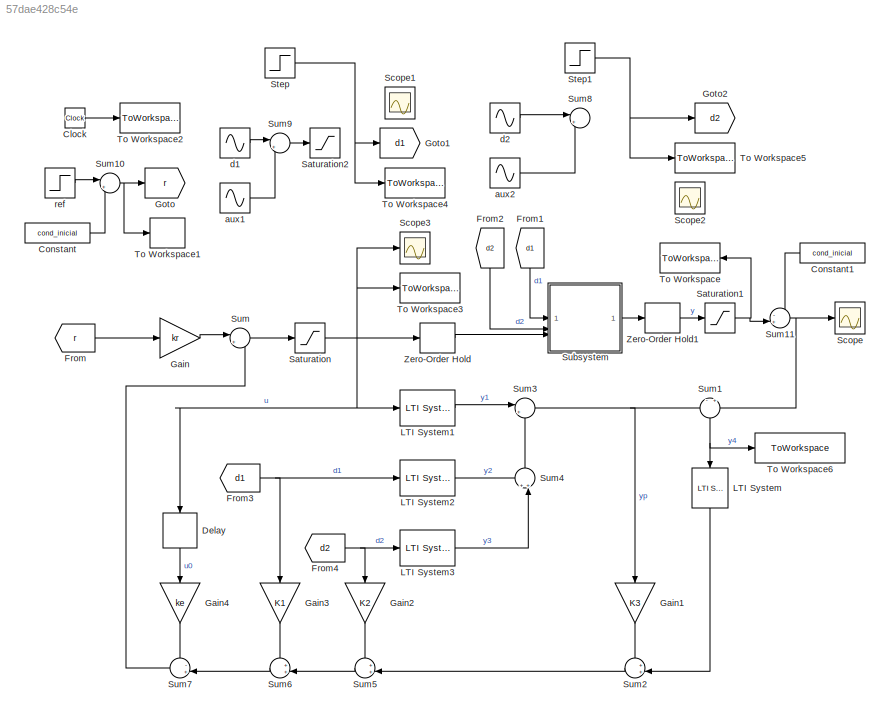
MODEL slx_57dae428c54e
KIND model
CONFIG AbsTol = auto
CONFIG EnableMultiTasking = off
CONFIG FixedStep = auto
CONFIG MaxStep = auto
CONFIG MinStep = auto
CONFIG RelTol = 1e-3
CONFIG SampleTimeConstraint = Unconstrained
CONFIG SolverName = VariableStepAuto
CONFIG StartTime = 0.0
CONFIG StopTime = Tsim
BLOCK [Clock] Clock
BLOCK [Constant] Constant
  Commented = on
  Value = cond_inicial
BLOCK [Constant] Constant1
  Commented = on
  NameLocation = top
  Value = cond_inicial
BLOCK [Delay] Delay
  DelayLength = 1
  InputPortMap = u0
  NameLocation = left
  SampleTime = Ts
BLOCK [From] From
  GotoTag = r
BLOCK [From] From1
  GotoTag = d1
  NameLocation = left
BLOCK [From] From2
  GotoTag = d2
  NameLocation = left
BLOCK [From] From3
  GotoTag = d1
BLOCK [From] From4
  GotoTag = d2
BLOCK [Gain] Gain
  Gain = kr
  Multiplication = Matrix(K*u)
BLOCK [Gain] Gain1
  Gain = K3
  Multiplication = Matrix(K*u)
  NameLocation = left
BLOCK [Gain] Gain2
  Gain = K2
  Multiplication = Matrix(K*u)
  NameLocation = left
BLOCK [Gain] Gain3
  Gain = K1
  Multiplication = Matrix(K*u)
  NameLocation = left
BLOCK [Gain] Gain4
  Gain = ke
  Multiplication = Matrix(K*u)
  NameLocation = left
BLOCK [Goto] Goto
  GotoTag = r
BLOCK [Goto] Goto1
  GotoTag = d1
BLOCK [Goto] Goto2
  GotoTag = d2
BLOCK [Reference] LTI System  REF=cstblocks/LTI System
  NameLocation = left
  SourceBlock = cstblocks/LTI System
  SourceType = LTI Block
BLOCK [Reference] LTI System1  REF=cstblocks/LTI System
  SourceBlock = cstblocks/LTI System
  SourceType = LTI Block
BLOCK [Reference] LTI System2  REF=cstblocks/LTI System
  SourceBlock = cstblocks/LTI System
  SourceType = LTI Block
BLOCK [Reference] LTI System3  REF=cstblocks/LTI System
  SourceBlock = cstblocks/LTI System
  SourceType = LTI Block
BLOCK [Saturate] Saturation
  LowerLimit = u_min
  UpperLimit = u_max
BLOCK [Saturate] Saturation1
  Commented = through
  LowerLimit = y_min
  UpperLimit = y_max
BLOCK [Saturate] Saturation2
  LowerLimit = 5
  UpperLimit = 80
BLOCK [Scope] Scope
  Floating = off
  NumInputPorts = 1
  ScopeSpecificationString = Simulink.scopes.TimeScopeBlockCfg('CurrentConfiguration', extmgr.ConfigurationSet(extmgr.Configuration('Core','General UI',true),extmgr.Configuration('Core','Source UI',true),extmgr.Configuration('Sources','WiredSimulink',true),extmgr.Configuration('Visuals','Time Domain',true,'SerializedDisplays',{struct('MinYLimReal','-5.35691','MaxYLimReal','48.21218','YLabelReal','','MinYLimMag','0.00000','Max...<+1384ch>
BLOCK [Scope] Scope1
  Floating = off
  NumInputPorts = 1
  ScopeSpecificationString = Simulink.scopes.TimeScopeBlockCfg('CurrentConfiguration', extmgr.ConfigurationSet(extmgr.Configuration('Core','General UI',true),extmgr.Configuration('Core','Source UI',true),extmgr.Configuration('Sources','WiredSimulink',true,'DataLoggingVariableName','ScopeData1'),extmgr.Configuration('Visuals','Time Domain',true,'SerializedDisplays',{struct('MinYLimReal','-4.33907','MaxYLimReal','89.05162','YLa...<+1448ch>
BLOCK [Scope] Scope2
  Floating = off
  NumInputPorts = 1
  ScopeSpecificationString = Simulink.scopes.TimeScopeBlockCfg('CurrentConfiguration', extmgr.ConfigurationSet(extmgr.Configuration('Core','General UI',true),extmgr.Configuration('Core','Source UI',true),extmgr.Configuration('Sources','WiredSimulink',true,'DataLoggingVariableName','ScopeData2'),extmgr.Configuration('Visuals','Time Domain',true,'SerializedDisplays',{struct('MinYLimReal','24.94313','MaxYLimReal','46.0864','YLab...<+1439ch>
BLOCK [Scope] Scope3
  Floating = off
  NumInputPorts = 1
  ScopeSpecificationString = Simulink.scopes.TimeScopeBlockCfg('CurrentConfiguration', extmgr.ConfigurationSet(extmgr.Configuration('Core','General UI',true),extmgr.Configuration('Core','Source UI',true),extmgr.Configuration('Sources','WiredSimulink',true,'DataLoggingVariableName','ScopeData1'),extmgr.Configuration('Visuals','Time Domain',true,'SerializedDisplays',{struct('MinYLimReal','-19.37421','MaxYLimReal','174.36786','Y...<+1424ch>
BLOCK [Step] Step
  SampleTime = Ts
  Time = 30000
BLOCK [Step] Step1
  After = 0.5
  SampleTime = Ts
  Time = 60000
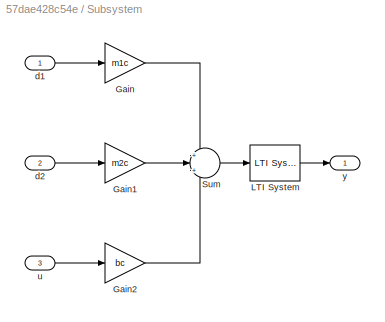
BLOCK [SubSystem] Subsystem
BLOCK [Gain] Subsystem/Gain
  Gain = m1c
BLOCK [Gain] Subsystem/Gain1
  Gain = m2c
BLOCK [Gain] Subsystem/Gain2
  Gain = bc
BLOCK [Reference] Subsystem/LTI System  REF=cstblocks/LTI System
  SourceBlock = cstblocks/LTI System
  SourceType = LTI Block
BLOCK [Sum] Subsystem/Sum
  Inputs = +|+|+
BLOCK [Inport] Subsystem/d1
BLOCK [Inport] Subsystem/d2
  Port = 2
BLOCK [Inport] Subsystem/u
  Port = 3
BLOCK [Outport] Subsystem/y
BLOCK [Sum] Sum
  Inputs = |+-
BLOCK [Sum] Sum1
  Inputs = -|+
  NameLocation = left
BLOCK [Sum] Sum10
  Inputs = |++
BLOCK [Sum] Sum11
  Inputs = -+|
BLOCK [Sum] Sum2
  Inputs = ++|
BLOCK [Sum] Sum3
  Inputs = |++
BLOCK [Sum] Sum4
  Inputs = ++|
  NameLocation = right
BLOCK [Sum] Sum5
  Inputs = ++|
BLOCK [Sum] Sum6
  Inputs = ++|
BLOCK [Sum] Sum7
  Inputs = -+|
BLOCK [Sum] Sum8
  Inputs = |++
BLOCK [Sum] Sum9
  Inputs = |++
BLOCK [ToWorkspace] To Workspace
  FixptAsFi = on
  MaxDataPoints = inf
  NameLocation = top
  SampleTime = Ts
  VariableName = y
BLOCK [ToWorkspace] To Workspace1
  FixptAsFi = on
  MaxDataPoints = inf
  SampleTime = Ts
  VariableName = r
BLOCK [ToWorkspace] To Workspace2
  FixptAsFi = on
  MaxDataPoints = inf
  SampleTime = Ts
  VariableName = t
BLOCK [ToWorkspace] To Workspace3
  FixptAsFi = on
  MaxDataPoints = inf
  SampleTime = Ts
  VariableName = u
BLOCK [ToWorkspace] To Workspace4
  FixptAsFi = on
  MaxDataPoints = inf
  SampleTime = Ts
  VariableName = d1
BLOCK [ToWorkspace] To Workspace5
  FixptAsFi = on
  MaxDataPoints = inf
  SampleTime = Ts
  VariableName = d2
BLOCK [ToWorkspace] To Workspace6
  FixptAsFi = on
  MaxDataPoints = inf
  SampleTime = Ts
  VariableName = y4
BLOCK [ZeroOrderHold] Zero-Order Hold
  SampleTime = Ts
BLOCK [ZeroOrderHold] Zero-Order Hold1
  SampleTime = Ts
BLOCK [Sin] aux1
  Amplitude = 0.5
  Frequency = 8*2*pi/Tsim
  Phase = -pi/4
  SampleTime = Ts
BLOCK [Sin] aux2
  Amplitude = 0.5
  Frequency = 8*2*pi/Tsim
  Phase = -pi/1.25
  SampleTime = Ts
BLOCK [Sin] d1
  Amplitude = 80
  Frequency = 2*pi/Tsim
  Phase = -pi/4
  SampleTime = Ts
BLOCK [Sin] d2
  Amplitude = 7.5
  Bias = 35.5
  Frequency = 2.25*pi/Tsim
  Phase = -pi/1.25
  SampleTime = Ts
BLOCK [Step] ref
  After = ref
  SampleTime = Ts
  Time = Tref
LINE Clock:1 -> To Workspace2:1
LINE Constant1:1 -> Sum11:1
LINE Constant:1 -> Sum10:2
LINE Delay:1 -> Gain4:1
LINE From1:1 -> Subsystem:1
LINE From2:1 -> Subsystem:2
NET From3:1 -> Gain3:1, LTI System2:1
NET From4:1 -> Gain2:1, LTI System3:1
LINE From:1 -> Gain:1
LINE Gain1:1 -> Sum2:1
LINE Gain2:1 -> Sum5:1
LINE Gain3:1 -> Sum6:1
LINE Gain4:1 -> Sum7:1
LINE Gain:1 -> Sum:1
LINE LTI System1:1 -> Sum3:1
LINE LTI System2:1 -> Sum4:1
LINE LTI System3:1 -> Sum4:2
LINE LTI System:1 -> Sum2:2
NET Saturation1:1 -> Sum11:2, To Workspace:1
NET Saturation:1 -> Delay:1, LTI System1:1, Scope3:1, To Workspace3:1, Zero-Order Hold:1
NET Step1:1 -> Goto2:1, To Workspace5:1
NET Step:1 -> Goto1:1, To Workspace4:1
LINE Subsystem/Gain1:1 -> Subsystem/Sum:2
LINE Subsystem/Gain2:1 -> Subsystem/Sum:3
LINE Subsystem/Gain:1 -> Subsystem/Sum:1
LINE Subsystem/LTI System:1 -> Subsystem/y:1
LINE Subsystem/Sum:1 -> Subsystem/LTI System:1
LINE Subsystem/d1:1 -> Subsystem/Gain:1
LINE Subsystem/d2:1 -> Subsystem/Gain1:1
LINE Subsystem/u:1 -> Subsystem/Gain2:1
LINE Subsystem:1 -> Zero-Order Hold1:1
NET Sum10:1 -> Goto:1, To Workspace1:1
NET Sum11:1 -> Scope:1, Sum1:2
NET Sum1:1 -> LTI System:1, To Workspace6:1
LINE Sum2:1 -> Sum5:2
NET Sum3:1 -> Gain1:1, Sum1:1
LINE Sum4:1 -> Sum3:2
LINE Sum5:1 -> Sum6:2
LINE Sum6:1 -> Sum7:2
LINE Sum7:1 -> Sum:2
LINE Sum9:1 -> Saturation2:1
LINE Sum:1 -> Saturation:1
LINE Zero-Order Hold1:1 -> Saturation1:1
LINE Zero-Order Hold:1 -> Subsystem:3
LINE aux1:1 -> Sum9:2
LINE aux2:1 -> Sum8:2
LINE d1:1 -> Sum9:1
LINE d2:1 -> Sum8:1
LINE ref:1 -> Sum10:1
note: NET lines group one-source signal fan-out (src -> all destinations, sorted); 1:1 wires keep LINE
